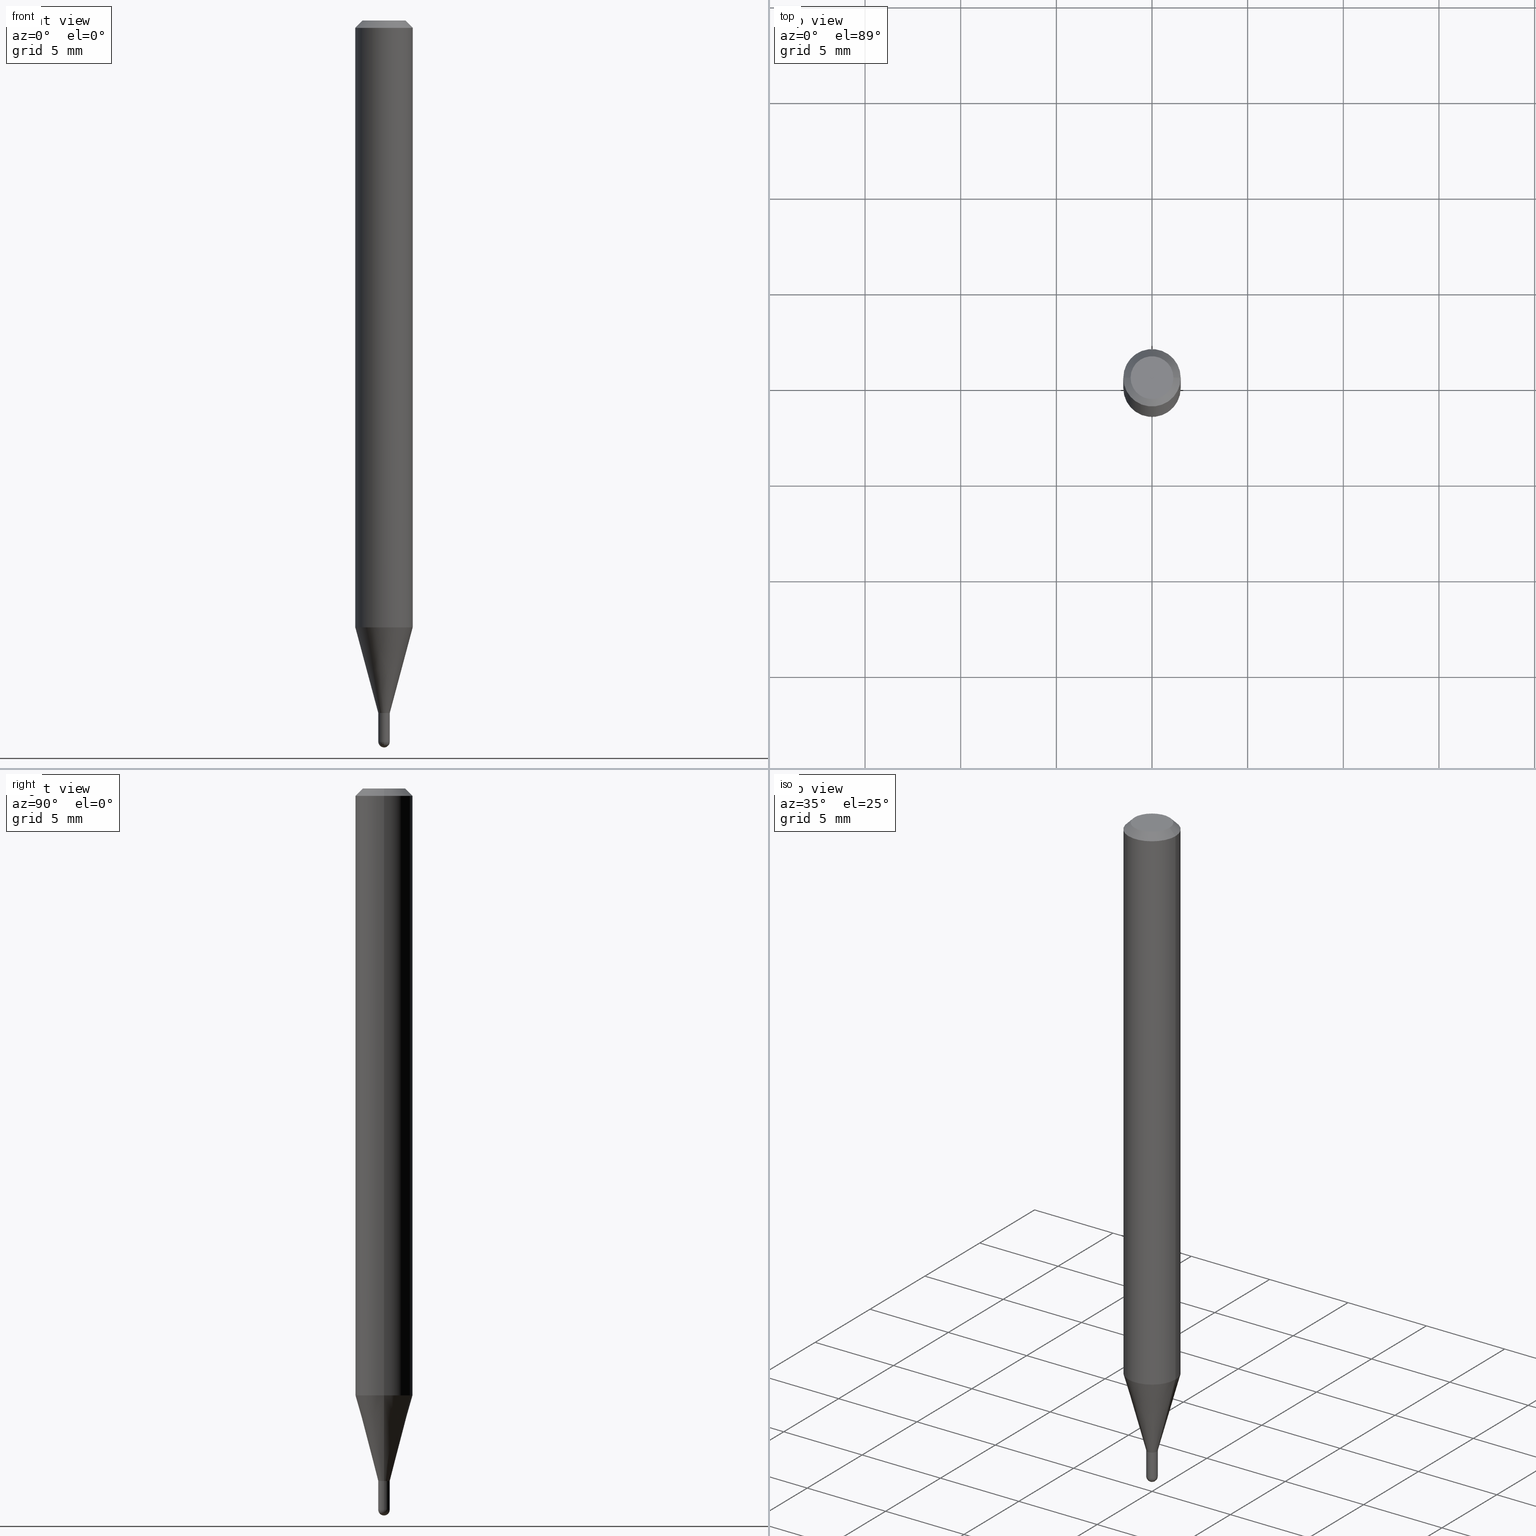
[diagram: canonical four-view strip — front | top / right | iso, engineering-drawing reading convention]
A machine part, canonical four-view strip (front | top / right | iso — engineering-drawing reading convention). The complete STEP part file that produces these views, byte-faithful:
ISO-10303-21;
HEADER;
FILE_DESCRIPTION (( 'STEP AP203' ),
    '1' );
FILE_NAME ('05047.STEP',
    '2024-03-08T21:12:23',
    ( '' ),
    ( '' ),
    'SwSTEP 2.0',
    'SolidWorks 2023',
    '' );
FILE_SCHEMA (( 'CONFIG_CONTROL_DESIGN' ));
ENDSEC;

DATA;
#1 = VERTEX_POINT ( 'NONE', #83 ) ;
#2 = AXIS2_PLACEMENT_3D ( 'NONE', #367, #399, #45 ) ;
#3 = LOCAL_TIME ( 16, 12, 23.00000000000000000, #427 ) ;
#4 = ADVANCED_FACE ( 'NONE', ( #243 ), #266, .T. ) ;
#5 = CALENDAR_DATE ( 2024, 8, 3 ) ;
#6 = ORIENTED_EDGE ( 'NONE', *, *, #426, .F. ) ;
#7 = DIRECTION ( 'NONE',  ( -0.2588190451025286776, 5.211531920934595218E-15, 0.9659258262890662028 ) ) ;
#8 = APPLICATION_CONTEXT ( 'configuration controlled 3d designs of mechanical parts and assemblies' ) ;
#9 = AXIS2_PLACEMENT_3D ( 'NONE', #49, #287, #52 ) ;
#10 = DESIGN_CONTEXT ( 'detailed design', #191, 'design' ) ;
#11 = CARTESIAN_POINT ( 'NONE',  ( 0.01130000000000000102, -5.054966682377104527E-15, -1.425199999999999578 ) ) ;
#12 = ORIENTED_EDGE ( 'NONE', *, *, #357, .F. ) ;
#13 = FACE_OUTER_BOUND ( 'NONE', #310, .T. ) ;
#14 = FACE_OUTER_BOUND ( 'NONE', #356, .T. ) ;
#15 = ADVANCED_FACE ( 'NONE', ( #198 ), #460, .T. ) ;
#16 = CARTESIAN_POINT ( 'NONE',  ( 0.05904999999999999832, -4.123439461173740327E-16, 2.879382386107500220E-30 ) ) ;
#17 = CIRCLE ( 'NONE', #306, 0.01180000000000000319 ) ;
#18 = ADVANCED_FACE ( 'NONE', ( #56 ), #401, .T. ) ;
#19 = AXIS2_PLACEMENT_3D ( 'NONE', #391, #417, #341 ) ;
#20 = FACE_OUTER_BOUND ( 'NONE', #203, .T. ) ;
#21 = ORIENTED_EDGE ( 'NONE', *, *, #347, .F. ) ;
#22 = SECURITY_CLASSIFICATION_LEVEL ( 'unclassified' ) ;
#23 = CARTESIAN_POINT ( 'NONE',  ( 3.668203209277724356E-31, -5.237222008264746748E-17, -0.01500000000000008098 ) ) ;
#24 = LINE ( 'NONE', #485, #286 ) ;
#25 = EDGE_LOOP ( 'NONE', ( #193, #189 ) ) ;
#26 = CIRCLE ( 'NONE', #316, 0.01179999999999965278 ) ;
#27 = CARTESIAN_POINT ( 'NONE',  ( 0.000000000000000000, 0.000000000000000000, 0.000000000000000000 ) ) ;
#28 = CARTESIAN_POINT ( 'NONE',  ( 0.01180000000000000319, -5.161631437278763522E-15, -1.484299999999999731 ) ) ;
#29 = PRODUCT_DEFINITION_FORMATION_WITH_SPECIFIED_SOURCE ( 'ANY', '', #329, .NOT_KNOWN. ) ;
#30 = ADVANCED_FACE ( 'NONE', ( #373 ), #447, .F. ) ;
#31 = CARTESIAN_POINT ( 'NONE',  ( 0.01180000000000000319, -8.239895959669796365E-17, 5.753888595439205651E-31 ) ) ;
#32 = APPLICATION_PROTOCOL_DEFINITION ( 'international standard', 'config_control_design', 1994, #8 ) ;
#33 = DIRECTION ( 'NONE',  ( -2.445468806185136597E-29, 3.491481338843145583E-15, 1.000000000000000000 ) ) ;
#34 = DIRECTION ( 'NONE',  ( -2.445468806185136597E-29, 3.491481338843145583E-15, 1.000000000000000000 ) ) ;
#35 = VERTEX_POINT ( 'NONE', #245 ) ;
#36 = DATE_AND_TIME ( #378, #3 ) ;
#37 = ADVANCED_FACE ( 'NONE', ( #166 ), #276, .T. ) ;
#38 = CALENDAR_DATE ( 2024, 8, 3 ) ;
#39 = CIRCLE ( 'NONE', #219, 0.01180000000000006738 ) ;
#40 = VECTOR ( 'NONE', #99, 39.37007874015748143 ) ;
#41 = ORIENTED_EDGE ( 'NONE', *, *, #124, .F. ) ;
#42 = DIRECTION ( 'NONE',  ( -2.445468806185136877E-29, 3.491481338843145188E-15, 1.000000000000000000 ) ) ;
#43 = VERTEX_POINT ( 'NONE', #335 ) ;
#44 = EDGE_LOOP ( 'NONE', ( #215, #510, #471, #259 ) ) ;
#45 = DIRECTION ( 'NONE',  ( 1.000000000000000000, -6.982962677686254878E-15, 0.000000000000000000 ) ) ;
#46 = VERTEX_POINT ( 'NONE', #250 ) ;
#47 = CARTESIAN_POINT ( 'NONE',  ( -0.05904999999999999832, 3.599717260347265590E-16, -0.01500000000000008098 ) ) ;
#48 = AXIS2_PLACEMENT_3D ( 'NONE', #410, #172, #138 ) ;
#49 = CARTESIAN_POINT ( 'NONE',  ( 3.629809349020597767E-29, -5.182405751244879809E-15, -1.484299999999999731 ) ) ;
#50 = LINE ( 'NONE', #96, #402 ) ;
#51 = CARTESIAN_POINT ( 'NONE',  ( 3.629809349020597767E-29, -5.182405751244879809E-15, -1.484299999999999731 ) ) ;
#52 = DIRECTION ( 'NONE',  ( 1.000000000000000000, -6.982962677686297476E-15, 0.000000000000000000 ) ) ;
#53 = ORIENTED_EDGE ( 'NONE', *, *, #70, .F. ) ;
#54 = CIRCLE ( 'NONE', #405, 0.01180000000000000319 ) ;
#55 = CARTESIAN_POINT ( 'NONE',  ( 0.01180000000000019922, -5.056712423046529186E-15, -1.424700000000000077 ) ) ;
#56 = FACE_OUTER_BOUND ( 'NONE', #57, .T. ) ;
#57 = EDGE_LOOP ( 'NONE', ( #480, #6, #314, #336 ) ) ;
#58 = LINE ( 'NONE', #31, #393 ) ;
#59 = CONICAL_SURFACE ( 'NONE', #279, 0.01179999999999965278, 0.2617993877991576235 ) ;
#60 = DIRECTION ( 'NONE',  ( -1.000000000000000000, 6.982962677686265922E-15, -4.883557194083112340E-29 ) ) ;
#61 =( NAMED_UNIT ( * ) PLANE_ANGLE_UNIT ( ) SI_UNIT ( $, .RADIAN. ) );
#62 = CARTESIAN_POINT ( 'NONE',  ( 0.000000000000000000, 0.000000000000000000, 0.000000000000000000 ) ) ;
#63 = EDGE_CURVE ( 'NONE', #35, #242, #168, .T. ) ;
#64 = APPROVAL_DATE_TIME ( #424, #420 ) ;
#65 = ADVANCED_FACE ( 'NONE', ( #14 ), #491, .T. ) ;
#66 = DIRECTION ( 'NONE',  ( -6.982962677686265133E-15, -1.000000000000000000, 0.000000000000000000 ) ) ;
#67 = PERSON_AND_ORGANIZATION ( #214, #507 ) ;
#68 = CARTESIAN_POINT ( 'NONE',  ( 3.054049638965451471E-29, -4.360373477420368492E-15, -1.248860599342374922 ) ) ;
#69 = EDGE_LOOP ( 'NONE', ( #235, #294 ) ) ;
#70 = EDGE_CURVE ( 'NONE', #114, #229, #24, .T. ) ;
#71 = CARTESIAN_POINT ( 'NONE',  ( 3.485282142575056435E-29, -4.976059204119250988E-15, -1.425199999999999800 ) ) ;
#72 = AXIS2_PLACEMENT_3D ( 'NONE', #439, #252, #86 ) ;
#73 = CIRCLE ( 'NONE', #220, 0.04404999999999999888 ) ;
#74 = ORIENTED_EDGE ( 'NONE', *, *, #270, .F. ) ;
#75 = EDGE_CURVE ( 'NONE', #150, #261, #17, .T. ) ;
#76 = ORIENTED_EDGE ( 'NONE', *, *, #436, .T. ) ;
#77 = ORIENTED_EDGE ( 'NONE', *, *, #63, .F. ) ;
#78 = AXIS2_PLACEMENT_3D ( 'NONE', #498, #500, #102 ) ;
#79 = EDGE_CURVE ( 'NONE', #194, #332, #371, .T. ) ;
#80 = ORIENTED_EDGE ( 'NONE', *, *, #132, .T. ) ;
#81 = ADVANCED_FACE ( 'NONE', ( #184 ), #428, .F. ) ;
#82 = CARTESIAN_POINT ( 'NONE',  ( 1.968655146103496235E-45, -2.810717800960375713E-31, -8.050215734195126909E-17 ) ) ;
#83 = CARTESIAN_POINT ( 'NONE',  ( -0.01130000000000000102, -4.893118647804247842E-15, -1.425199999999999578 ) ) ;
#84 = EDGE_CURVE ( 'NONE', #148, #229, #450, .T. ) ;
#85 = DIRECTION ( 'NONE',  ( -2.445468806185136597E-29, 3.491481338843145583E-15, 1.000000000000000000 ) ) ;
#86 = DIRECTION ( 'NONE',  ( 1.000000000000000000, -6.982962677686266711E-15, 4.876176775795935232E-29 ) ) ;
#87 = CLOSED_SHELL ( 'NONE', ( #509, #65, #81, #434, #300 ) ) ;
#88 = AXIS2_PLACEMENT_3D ( 'NONE', #27, #34, #299 ) ;
#89 =( GEOMETRIC_REPRESENTATION_CONTEXT ( 3 ) GLOBAL_UNCERTAINTY_ASSIGNED_CONTEXT ( ( #241 ) ) GLOBAL_UNIT_ASSIGNED_CONTEXT ( ( #499, #61, #385 ) ) REPRESENTATION_CONTEXT ( 'NONE', 'WORKASPACE' ) );
#90 = DATE_AND_TIME ( #127, #197 ) ;
#91 = LINE ( 'NONE', #338, #155 ) ;
#92 = DIRECTION ( 'NONE',  ( -2.445468806185136597E-29, 3.491481338843145583E-15, 1.000000000000000000 ) ) ;
#93 = DIRECTION ( 'NONE',  ( 1.000000000000000000, -6.982962677686265922E-15, 4.876176775795935793E-29 ) ) ;
#94 = PRODUCT_DEFINITION ( 'UNKNOWN', '', #29, #10 ) ;
#95 = PERSON_AND_ORGANIZATION ( #214, #507 ) ;
#96 = CARTESIAN_POINT ( 'NONE',  ( 0.01179999999999992687, -8.239895959669743364E-17, 5.753888595439167991E-31 ) ) ;
#97 = VERTEX_POINT ( 'NONE', #311 ) ;
#98 = AXIS2_PLACEMENT_3D ( 'NONE', #412, #369, #481 ) ;
#99 = DIRECTION ( 'NONE',  ( -2.445468806185136877E-29, 3.491481338843145188E-15, 1.000000000000000000 ) ) ;
#100 = EDGE_LOOP ( 'NONE', ( #118, #418, #77, #429, #415 ) ) ;
#101 = PERSON_AND_ORGANIZATION ( #214, #507 ) ;
#102 = DIRECTION ( 'NONE',  ( -1.000000000000000000, 6.982962677686265922E-15, -4.876176775795935793E-29 ) ) ;
#103 = EDGE_CURVE ( 'NONE', #353, #362, #154, .T. ) ;
#104 = FACE_OUTER_BOUND ( 'NONE', #158, .T. ) ;
#105 = CIRCLE ( 'NONE', #239, 0.01180000000000000146 ) ;
#106 = APPROVAL_ROLE ( '' ) ;
#107 = DIRECTION ( 'NONE',  ( 1.000000000000000000, -6.982962677686266711E-15, 4.876176775795936353E-29 ) ) ;
#108 = PERSON_AND_ORGANIZATION_ROLE ( 'creator' ) ;
#109 = CARTESIAN_POINT ( 'NONE',  ( 3.629809349020597767E-29, -5.182405751244879809E-15, -1.484299999999999731 ) ) ;
#110 = ORIENTED_EDGE ( 'NONE', *, *, #200, .T. ) ;
#111 = ADVANCED_FACE ( 'NONE', ( #113 ), #256, .T. ) ;
#112 = APPROVAL_STATUS ( 'not_yet_approved' ) ;
#113 = FACE_OUTER_BOUND ( 'NONE', #225, .T. ) ;
#114 = VERTEX_POINT ( 'NONE', #467 ) ;
#115 = DIRECTION ( 'NONE',  ( -2.445468806185136597E-29, 3.491481338843145583E-15, 1.000000000000000000 ) ) ;
#116 = DIRECTION ( 'NONE',  ( -2.445468806185136597E-29, 3.491481338843145583E-15, 1.000000000000000000 ) ) ;
#117 = LOCAL_TIME ( 16, 12, 23.00000000000000000, #268 ) ;
#118 = ORIENTED_EDGE ( 'NONE', *, *, #160, .T. ) ;
#119 = PRODUCT_RELATED_PRODUCT_CATEGORY ( 'detail', '', ( #329 ) ) ;
#120 = ORIENTED_EDGE ( 'NONE', *, *, #383, .T. ) ;
#121 = LOCAL_TIME ( 16, 12, 23.00000000000000000, #199 ) ;
#122 = DIMENSIONAL_EXPONENTS ( 1.000000000000000000, 0.000000000000000000, 0.000000000000000000, 0.000000000000000000, 0.000000000000000000, 0.000000000000000000, 0.000000000000000000 ) ;
#123 = ORIENTED_EDGE ( 'NONE', *, *, #464, .T. ) ;
#124 = EDGE_CURVE ( 'NONE', #1, #362, #269, .T. ) ;
#125 = CARTESIAN_POINT ( 'NONE',  ( -0.01179999999999992687, 8.384404281969130229E-17, -5.804343406500752232E-31 ) ) ;
#126 = DIRECTION ( 'NONE',  ( 2.445468806185136597E-29, -3.491481338843145583E-15, -1.000000000000000000 ) ) ;
#127 = CALENDAR_DATE ( 2024, 8, 3 ) ;
#128 = CYLINDRICAL_SURFACE ( 'NONE', #247, 0.05904999999999999832 ) ;
#129 = DIRECTION ( 'NONE',  ( 1.000000000000000000, -6.982962677686265133E-15, 4.883557194083112340E-29 ) ) ;
#130 = AXIS2_PLACEMENT_3D ( 'NONE', #413, #126, #285 ) ;
#131 = LINE ( 'NONE', #11, #461 ) ;
#132 = EDGE_CURVE ( 'NONE', #362, #353, #315, .T. ) ;
#133 = CARTESIAN_POINT ( 'NONE',  ( 3.485282142575056435E-29, -4.976059204119250988E-15, -1.425199999999999800 ) ) ;
#134 = CARTESIAN_POINT ( 'NONE',  ( 3.628800252799366100E-29, -5.183850834467873739E-15, -1.484299999999999731 ) ) ;
#135 = VERTEX_POINT ( 'NONE', #234 ) ;
#136 = DATE_TIME_ROLE ( 'classification_date' ) ;
#137 = CYLINDRICAL_SURFACE ( 'NONE', #317, 0.01180000000000000319 ) ;
#138 = DIRECTION ( 'NONE',  ( 1.000000000000000000, -6.982962677686258033E-15, 0.000000000000000000 ) ) ;
#139 = EDGE_LOOP ( 'NONE', ( #435, #440 ) ) ;
#140 = AXIS2_PLACEMENT_3D ( 'NONE', #265, #504, #216 ) ;
#141 = PERSON_AND_ORGANIZATION ( #214, #507 ) ;
#142 = CARTESIAN_POINT ( 'NONE',  ( -0.01130000000000000102, -4.895767874978359043E-15, -1.425199999999999578 ) ) ;
#143 = CARTESIAN_POINT ( 'NONE',  ( 0.000000000000000000, 0.000000000000000000, 0.000000000000000000 ) ) ;
#144 = DIRECTION ( 'NONE',  ( 7.105427357600999492E-15, 1.000000000000000000, 0.000000000000000000 ) ) ;
#145 = ADVANCED_FACE ( 'NONE', ( #104 ), #396, .T. ) ;
#146 = DIRECTION ( 'NONE',  ( 1.000000000000000000, -6.982962677686297476E-15, 0.000000000000000000 ) ) ;
#147 = DIRECTION ( 'NONE',  ( -2.445468806185136597E-29, 3.491481338843145583E-15, 1.000000000000000000 ) ) ;
#148 = VERTEX_POINT ( 'NONE', #381 ) ;
#149 = DIRECTION ( 'NONE',  ( 1.000000000000000000, -6.982962677686264344E-15, 0.000000000000000000 ) ) ;
#150 = VERTEX_POINT ( 'NONE', #28 ) ;
#151 = CARTESIAN_POINT ( 'NONE',  ( -0.05904999999999999832, 4.195754854663391478E-16, -2.904631170795521892E-30 ) ) ;
#152 = VERTEX_POINT ( 'NONE', #344 ) ;
#153 = EDGE_CURVE ( 'NONE', #152, #261, #209, .T. ) ;
#154 = CIRCLE ( 'NONE', #411, 0.01180000000000019922 ) ;
#155 = VECTOR ( 'NONE', #171, 39.37007874015748143 ) ;
#156 = ORIENTED_EDGE ( 'NONE', *, *, #195, .T. ) ;
#157 = ADVANCED_FACE ( 'NONE', ( #302 ), #59, .T. ) ;
#158 = EDGE_LOOP ( 'NONE', ( #495, #492, #508, #12 ) ) ;
#159 = EDGE_CURVE ( 'NONE', #229, #148, #486, .T. ) ;
#160 = EDGE_CURVE ( 'NONE', #261, #389, #54, .T. ) ;
#161 = ORIENTED_EDGE ( 'NONE', *, *, #361, .T. ) ;
#162 = AXIS2_PLACEMENT_3D ( 'NONE', #408, #406, #205 ) ;
#163 = DIRECTION ( 'NONE',  ( -2.445468806185136877E-29, 3.491481338843145188E-15, 1.000000000000000000 ) ) ;
#164 = ORIENTED_EDGE ( 'NONE', *, *, #124, .T. ) ;
#165 = CARTESIAN_POINT ( 'NONE',  ( 1.968655146103496235E-45, -2.810717800960375713E-31, -8.050215734195126909E-17 ) ) ;
#166 = FACE_OUTER_BOUND ( 'NONE', #44, .T. ) ;
#167 = CARTESIAN_POINT ( 'NONE',  ( 3.485282142575056435E-29, -4.976059204119250988E-15, -1.425199999999999800 ) ) ;
#168 = CIRCLE ( 'NONE', #382, 0.01180000000000000146 ) ;
#169 = CIRCLE ( 'NONE', #98, 0.01180000000000000319 ) ;
#170 = EDGE_CURVE ( 'NONE', #46, #148, #474, .T. ) ;
#171 = DIRECTION ( 'NONE',  ( -2.445468806185136877E-29, 3.491481338843145188E-15, 1.000000000000000000 ) ) ;
#172 = DIRECTION ( 'NONE',  ( -2.445468806185136597E-29, 3.491481338843145583E-15, 1.000000000000000000 ) ) ;
#173 = ORIENTED_EDGE ( 'NONE', *, *, #132, .F. ) ;
#174 = PERSON_AND_ORGANIZATION ( #214, #507 ) ;
#175 = DIRECTION ( 'NONE',  ( -2.445468806185136877E-29, 3.491481338843145188E-15, 1.000000000000000000 ) ) ;
#176 = DIRECTION ( 'NONE',  ( 0.2588190451025286776, 1.565188264969564184E-15, 0.9659258262890662028 ) ) ;
#177 = ORIENTED_EDGE ( 'NONE', *, *, #79, .F. ) ;
#178 = CC_DESIGN_PERSON_AND_ORGANIZATION_ASSIGNMENT ( #95, #254, ( #29 ) ) ;
#179 = APPROVAL_PERSON_ORGANIZATION ( #318, #275, #359 ) ;
#180 =( LENGTH_UNIT ( ) NAMED_UNIT ( * ) SI_UNIT ( $, .METRE. ) );
#181 = DIRECTION ( 'NONE',  ( -2.445468806185136597E-29, 3.491481338843145583E-15, 1.000000000000000000 ) ) ;
#182 = DIRECTION ( 'NONE',  ( 1.000000000000000000, -6.982962677686258033E-15, 0.000000000000000000 ) ) ;
#183 = CARTESIAN_POINT ( 'NONE',  ( 3.485282142575056435E-29, -4.976059204119250988E-15, -1.425199999999999800 ) ) ;
#184 = FACE_OUTER_BOUND ( 'NONE', #69, .T. ) ;
#185 = CLOSED_SHELL ( 'NONE', ( #30, #4, #111, #363, #157, #37, #145, #18, #453, #477, #15, #512 ) ) ;
#186 = CIRCLE ( 'NONE', #19, 0.01130000000000000102 ) ;
#187 = DATE_AND_TIME ( #38, #423 ) ;
#188 = DIRECTION ( 'NONE',  ( 1.000000000000000000, -6.982962677686265133E-15, 0.000000000000000000 ) ) ;
#189 = ORIENTED_EDGE ( 'NONE', *, *, #192, .T. ) ;
#190 = DIRECTION ( 'NONE',  ( 1.000000000000000000, -6.982962677686254878E-15, 0.000000000000000000 ) ) ;
#191 = APPLICATION_CONTEXT ( 'configuration controlled 3d designs of mechanical parts and assemblies' ) ;
#192 = EDGE_CURVE ( 'NONE', #43, #97, #472, .T. ) ;
#193 = ORIENTED_EDGE ( 'NONE', *, *, #426, .T. ) ;
#194 = VERTEX_POINT ( 'NONE', #263 ) ;
#195 = EDGE_CURVE ( 'NONE', #152, #135, #39, .T. ) ;
#196 = AXIS2_PLACEMENT_3D ( 'NONE', #305, #222, #144 ) ;
#197 = LOCAL_TIME ( 16, 12, 23.00000000000000000, #201 ) ;
#198 = FACE_OUTER_BOUND ( 'NONE', #454, .T. ) ;
#199 = COORDINATED_UNIVERSAL_TIME_OFFSET ( 5, 0, .BEHIND. ) ;
#200 = EDGE_CURVE ( 'NONE', #150, #35, #58, .T. ) ;
#201 = COORDINATED_UNIVERSAL_TIME_OFFSET ( 5, 0, .BEHIND. ) ;
#202 = DIRECTION ( 'NONE',  ( 1.000000000000000000, -6.982962677686266711E-15, 0.000000000000000000 ) ) ;
#203 = EDGE_LOOP ( 'NONE', ( #21, #76, #161, #110, #397 ) ) ;
#204 = CIRCLE ( 'NONE', #9, 0.01180000000000000319 ) ;
#205 = DIRECTION ( 'NONE',  ( -6.982962677686265133E-15, -1.000000000000000000, 0.000000000000000000 ) ) ;
#206 = CARTESIAN_POINT ( 'NONE',  ( 3.485282142575056435E-29, -4.976059204119250988E-15, -1.425199999999999800 ) ) ;
#207 = EDGE_CURVE ( 'NONE', #148, #332, #395, .T. ) ;
#208 = CARTESIAN_POINT ( 'NONE',  ( 8.384404281972835410E-17, 0.01179999999999485107, -1.484299999999999731 ) ) ;
#209 = CIRCLE ( 'NONE', #196, 0.01180000000000006738 ) ;
#210 = ORIENTED_EDGE ( 'NONE', *, *, #361, .F. ) ;
#211 = PERSON_AND_ORGANIZATION_ROLE ( 'design_supplier' ) ;
#212 = FACE_OUTER_BOUND ( 'NONE', #25, .T. ) ;
#213 = DIRECTION ( 'NONE',  ( -6.982962677686265133E-15, -1.000000000000000000, 0.000000000000000000 ) ) ;
#214 = PERSON ( 'UNSPECIFIED', 'UNSPECIFIED', 'UNSPECIFIED', ('UNSPECIFIED'), ('UNSPECIFIED'), ('UNSPECIFIED') ) ;
#215 = ORIENTED_EDGE ( 'NONE', *, *, #170, .F. ) ;
#216 = DIRECTION ( 'NONE',  ( 1.000000000000000000, -6.982962677686266711E-15, 4.876176775795935232E-29 ) ) ;
#217 = PLANE ( 'NONE',  #307 ) ;
#218 = CARTESIAN_POINT ( 'NONE',  ( 3.484059408171963633E-29, -4.974313463449829484E-15, -1.424700000000000077 ) ) ;
#219 = AXIS2_PLACEMENT_3D ( 'NONE', #267, #60, #66 ) ;
#220 = AXIS2_PLACEMENT_3D ( 'NONE', #165, #244, #327 ) ;
#221 = DIRECTION ( 'NONE',  ( 1.000000000000000000, 0.000000000000000000, 0.000000000000000000 ) ) ;
#222 = DIRECTION ( 'NONE',  ( 1.000000000000000000, -7.105427357601001070E-15, 4.926315508542082329E-29 ) ) ;
#223 = PERSON_AND_ORGANIZATION ( #214, #507 ) ;
#224 = DIRECTION ( 'NONE',  ( 1.000000000000000000, -6.982962677686266711E-15, 0.000000000000000000 ) ) ;
#225 = EDGE_LOOP ( 'NONE', ( #272, #277, #377, #340 ) ) ;
#226 = PRODUCT_DEFINITION_SHAPE ( 'NONE', 'NONE',  #94 ) ;
#227 = EDGE_CURVE ( 'NONE', #114, #46, #26, .T. ) ;
#228 = CARTESIAN_POINT ( 'NONE',  ( 3.668203209277724356E-31, -5.237222008264746748E-17, -0.01500000000000008098 ) ) ;
#229 = VERTEX_POINT ( 'NONE', #313 ) ;
#230 = VECTOR ( 'NONE', #7, 39.37007874015748143 ) ;
#231 = CARTESIAN_POINT ( 'NONE',  ( -0.01180000000000000146, -4.995388434862373344E-15, -1.425199999999999800 ) ) ;
#232 = APPROVAL_PERSON_ORGANIZATION ( #101, #303, #337 ) ;
#233 = APPROVAL_DATE_TIME ( #431, #275 ) ;
#234 = CARTESIAN_POINT ( 'NONE',  ( -8.239895959666188559E-17, -0.01180000000000521951, -1.484299999999999731 ) ) ;
#235 = ORIENTED_EDGE ( 'NONE', *, *, #63, .T. ) ;
#236 = EDGE_CURVE ( 'NONE', #1, #283, #488, .T. ) ;
#237 = ORIENTED_EDGE ( 'NONE', *, *, #365, .T. ) ;
#238 = AXIS2_PLACEMENT_3D ( 'NONE', #134, #129, #213 ) ;
#239 = AXIS2_PLACEMENT_3D ( 'NONE', #133, #489, #443 ) ;
#240 = EDGE_LOOP ( 'NONE', ( #392, #164, #281, #312 ) ) ;
#241 = UNCERTAINTY_MEASURE_WITH_UNIT (LENGTH_MEASURE( 1.000000000000000082E-05 ), #499, 'distance_accuracy_value', 'NONE');
#242 = VERTEX_POINT ( 'NONE', #231 ) ;
#243 = FACE_OUTER_BOUND ( 'NONE', #240, .T. ) ;
#244 = DIRECTION ( 'NONE',  ( -2.445468806185136597E-29, 3.491481338843145583E-15, 1.000000000000000000 ) ) ;
#245 = CARTESIAN_POINT ( 'NONE',  ( 0.01180000000000000146, -5.058458163715949112E-15, -1.425199999999999800 ) ) ;
#246 = AXIS2_PLACEMENT_3D ( 'NONE', #82, #116, #398 ) ;
#247 = AXIS2_PLACEMENT_3D ( 'NONE', #451, #334, #490 ) ;
#248 = ORIENTED_EDGE ( 'NONE', *, *, #236, .T. ) ;
#249 = CARTESIAN_POINT ( 'NONE',  ( 3.075995059520799729E-16, 0.04404999999999999888, -1.940508316470162065E-16 ) ) ;
#250 = CARTESIAN_POINT ( 'NONE',  ( -0.01179999999999965278, -4.416506576626794755E-15, -1.425199999999999800 ) ) ;
#251 = CARTESIAN_POINT ( 'NONE',  ( -0.05904999999999999832, -1.786797363285168490E-15, -0.01500000000000008098 ) ) ;
#252 = DIRECTION ( 'NONE',  ( -2.445468806185136597E-29, 3.491481338843145583E-15, 1.000000000000000000 ) ) ;
#253 = ORIENTED_EDGE ( 'NONE', *, *, #75, .F. ) ;
#254 = PERSON_AND_ORGANIZATION_ROLE ( 'creator' ) ;
#255 = DIRECTION ( 'NONE',  ( -2.445468806185136597E-29, 3.491481338843145583E-15, 1.000000000000000000 ) ) ;
#256 = CONICAL_SURFACE ( 'NONE', #441, 0.05904999999999999832, 0.7853981633974483900 ) ;
#257 = VECTOR ( 'NONE', #163, 39.37007874015748143 ) ;
#258 = EDGE_CURVE ( 'NONE', #97, #332, #493, .T. ) ;
#259 = ORIENTED_EDGE ( 'NONE', *, *, #84, .F. ) ;
#260 = DATE_TIME_ROLE ( 'creation_date' ) ;
#261 = VERTEX_POINT ( 'NONE', #208 ) ;
#262 = SHAPE_DEFINITION_REPRESENTATION ( #226, #476 ) ;
#263 = CARTESIAN_POINT ( 'NONE',  ( 0.05904999999999999832, -4.647161662000215063E-16, -0.01500000000000008098 ) ) ;
#264 = DIRECTION ( 'NONE',  ( 2.445468806185136597E-29, -3.491481338843145583E-15, -1.000000000000000000 ) ) ;
#265 = CARTESIAN_POINT ( 'NONE',  ( 0.000000000000000000, 0.000000000000000000, 0.000000000000000000 ) ) ;
#266 = CONICAL_SURFACE ( 'NONE', #2, 0.01130000000000000102, 0.7853981633980202659 ) ;
#267 = CARTESIAN_POINT ( 'NONE',  ( 3.628800252799366100E-29, -5.183850834467873739E-15, -1.484299999999999731 ) ) ;
#268 = COORDINATED_UNIVERSAL_TIME_OFFSET ( 5, 0, .BEHIND. ) ;
#269 = LINE ( 'NONE', #142, #342 ) ;
#270 = EDGE_CURVE ( 'NONE', #229, #194, #370, .T. ) ;
#271 = COORDINATED_UNIVERSAL_TIME_OFFSET ( 5, 0, .BEHIND. ) ;
#272 = ORIENTED_EDGE ( 'NONE', *, *, #192, .F. ) ;
#273 = DIRECTION ( 'NONE',  ( 1.000000000000000000, -6.982962677686264344E-15, 0.000000000000000000 ) ) ;
#274 = ORIENTED_EDGE ( 'NONE', *, *, #365, .F. ) ;
#275 = APPROVAL ( #112, 'UNSPECIFIED' ) ;
#276 = CONICAL_SURFACE ( 'NONE', #48, 0.01179999999999965278, 0.2617993877991576235 ) ;
#277 = ORIENTED_EDGE ( 'NONE', *, *, #503, .T. ) ;
#278 = CARTESIAN_POINT ( 'NONE',  ( -0.01179999999999965278, -4.892215161299561300E-15, -1.425199999999999800 ) ) ;
#279 = AXIS2_PLACEMENT_3D ( 'NONE', #505, #33, #182 ) ;
#280 = CC_DESIGN_APPROVAL ( #275, ( #29 ) ) ;
#281 = ORIENTED_EDGE ( 'NONE', *, *, #103, .F. ) ;
#282 = MANIFOLD_SOLID_BREP ( 'Body-Move/Copy2[2]', #185 ) ;
#283 = VERTEX_POINT ( 'NONE', #404 ) ;
#284 = CARTESIAN_POINT ( 'NONE',  ( -0.01180000000000000319, -4.995388434862373344E-15, -1.484299999999999731 ) ) ;
#285 = DIRECTION ( 'NONE',  ( -1.000000000000000000, 6.982962677686266711E-15, 0.000000000000000000 ) ) ;
#286 = VECTOR ( 'NONE', #176, 39.37007874015748143 ) ;
#287 = DIRECTION ( 'NONE',  ( -2.445468806185136597E-29, 3.491481338843145583E-15, 1.000000000000000000 ) ) ;
#288 = DIRECTION ( 'NONE',  ( -2.445468806185136597E-29, 3.491481338843145583E-15, 1.000000000000000000 ) ) ;
#289 = AXIS2_PLACEMENT_3D ( 'NONE', #143, #421, #221 ) ;
#290 = SPHERICAL_SURFACE ( 'NONE', #162, 0.01180000000000006738 ) ;
#291 = EDGE_CURVE ( 'NONE', #46, #114, #394, .T. ) ;
#292 = PLANE ( 'NONE',  #331 ) ;
#293 = CC_DESIGN_DATE_AND_TIME_ASSIGNMENT ( #187, #260, ( #94 ) ) ;
#294 = ORIENTED_EDGE ( 'NONE', *, *, #416, .T. ) ;
#295 = CARTESIAN_POINT ( 'NONE',  ( -0.01180000000000019922, -4.890469420630136641E-15, -1.424700000000000077 ) ) ;
#296 = VECTOR ( 'NONE', #42, 39.37007874015748143 ) ;
#297 = CC_DESIGN_APPROVAL ( #303, ( #322 ) ) ;
#298 = ORIENTED_EDGE ( 'NONE', *, *, #159, .F. ) ;
#299 = DIRECTION ( 'NONE',  ( 1.000000000000000000, -6.982962677686265922E-15, 4.876176775795935793E-29 ) ) ;
#300 = ADVANCED_FACE ( 'NONE', ( #20 ), #137, .T. ) ;
#301 = DIRECTION ( 'NONE',  ( 1.000000000000000000, -6.982962677686265922E-15, 4.876176775795935793E-29 ) ) ;
#302 = FACE_OUTER_BOUND ( 'NONE', #465, .T. ) ;
#303 = APPROVAL ( #455, 'UNSPECIFIED' ) ;
#304 = PERSON_AND_ORGANIZATION_ROLE ( 'design_owner' ) ;
#305 = CARTESIAN_POINT ( 'NONE',  ( 3.628800252799366100E-29, -5.183850834467873739E-15, -1.484299999999999731 ) ) ;
#306 = AXIS2_PLACEMENT_3D ( 'NONE', #51, #288, #444 ) ;
#307 = AXIS2_PLACEMENT_3D ( 'NONE', #183, #345, #301 ) ;
#308 = CALENDAR_DATE ( 2024, 8, 3 ) ;
#309 = DIRECTION ( 'NONE',  ( -0.7071067811869518049, 7.493145998871813553E-15, 0.7071067811861430075 ) ) ;
#310 = EDGE_LOOP ( 'NONE', ( #483, #320, #177, #74 ) ) ;
#311 = CARTESIAN_POINT ( 'NONE',  ( -0.04404999999999999888, 3.337856159934031674E-16, -8.050215734195352474E-17 ) ) ;
#312 = ORIENTED_EDGE ( 'NONE', *, *, #383, .F. ) ;
#313 = CARTESIAN_POINT ( 'NONE',  ( 0.05904999999999999138, -4.772717423537742623E-15, -1.248860599342374922 ) ) ;
#314 = ORIENTED_EDGE ( 'NONE', *, *, #258, .T. ) ;
#315 = CIRCLE ( 'NONE', #422, 0.01180000000000019922 ) ;
#316 = AXIS2_PLACEMENT_3D ( 'NONE', #71, #115, #511 ) ;
#317 = AXIS2_PLACEMENT_3D ( 'NONE', #330, #85, #93 ) ;
#318 = PERSON_AND_ORGANIZATION ( #214, #507 ) ;
#319 = ORIENTED_EDGE ( 'NONE', *, *, #436, .F. ) ;
#320 = ORIENTED_EDGE ( 'NONE', *, *, #207, .T. ) ;
#321 = AXIS2_PLACEMENT_3D ( 'NONE', #62, #425, #107 ) ;
#322 = SECURITY_CLASSIFICATION ( '', '', #22 ) ;
#323 = EDGE_LOOP ( 'NONE', ( #274, #350, #123, #449 ) ) ;
#324 = DIRECTION ( 'NONE',  ( -2.445468806185136597E-29, 3.491481338843145583E-15, 1.000000000000000000 ) ) ;
#325 = ORIENTED_EDGE ( 'NONE', *, *, #160, .F. ) ;
#326 = CC_DESIGN_PERSON_AND_ORGANIZATION_ASSIGNMENT ( #368, #211, ( #29 ) ) ;
#327 = DIRECTION ( 'NONE',  ( 1.000000000000000000, -6.982962677686265922E-15, 4.888540261209747396E-29 ) ) ;
#328 = DIRECTION ( 'NONE',  ( 1.000000000000000000, -6.982962677686254878E-15, 0.000000000000000000 ) ) ;
#329 = PRODUCT ( '05047', '05047', '', ( #379 ) ) ;
#330 = CARTESIAN_POINT ( 'NONE',  ( 0.000000000000000000, 0.000000000000000000, 0.000000000000000000 ) ) ;
#331 = AXIS2_PLACEMENT_3D ( 'NONE', #249, #375, #446 ) ;
#332 = VERTEX_POINT ( 'NONE', #251 ) ;
#333 = CC_DESIGN_PERSON_AND_ORGANIZATION_ASSIGNMENT ( #223, #108, ( #94 ) ) ;
#334 = DIRECTION ( 'NONE',  ( -2.445468806185136597E-29, 3.491481338843145583E-15, 1.000000000000000000 ) ) ;
#335 = CARTESIAN_POINT ( 'NONE',  ( 0.04404999999999999888, -3.798447818264463530E-16, -8.050215734194887786E-17 ) ) ;
#336 = ORIENTED_EDGE ( 'NONE', *, *, #357, .T. ) ;
#337 = APPROVAL_ROLE ( '' ) ;
#338 = CARTESIAN_POINT ( 'NONE',  ( -0.01180000000000000319, 8.384404281969184463E-17, -5.804343406500789892E-31 ) ) ;
#339 = CARTESIAN_POINT ( 'NONE',  ( 3.668203209277724356E-31, -5.237222008264746748E-17, -0.01500000000000008098 ) ) ;
#340 = ORIENTED_EDGE ( 'NONE', *, *, #258, .F. ) ;
#341 = DIRECTION ( 'NONE',  ( 1.000000000000000000, -6.982962677686254878E-15, 0.000000000000000000 ) ) ;
#342 = VECTOR ( 'NONE', #309, 39.37007874015748854 ) ;
#343 = LENGTH_MEASURE_WITH_UNIT ( LENGTH_MEASURE( 0.02539999999999999897 ), #180 );
#344 = CARTESIAN_POINT ( 'NONE',  ( 3.657152236601735168E-29, -5.225772855877719767E-15, -1.496099999999999985 ) ) ;
#345 = DIRECTION ( 'NONE',  ( -2.438088387897960049E-29, 3.491481338843145188E-15, 1.000000000000000000 ) ) ;
#346 = CARTESIAN_POINT ( 'NONE',  ( 3.054049638965451471E-29, -4.360373477420368492E-15, -1.248860599342374922 ) ) ;
#347 = EDGE_CURVE ( 'NONE', #389, #242, #91, .T. ) ;
#348 = APPLICATION_PROTOCOL_DEFINITION ( 'international standard', 'config_control_design', 1994, #191 ) ;
#349 = DIRECTION ( 'NONE',  ( -1.000000000000000000, 6.982962677686266711E-15, 0.000000000000000000 ) ) ;
#350 = ORIENTED_EDGE ( 'NONE', *, *, #227, .F. ) ;
#351 = AXIS2_PLACEMENT_3D ( 'NONE', #339, #92, #224 ) ;
#352 = CC_DESIGN_APPROVAL ( #420, ( #94 ) ) ;
#353 = VERTEX_POINT ( 'NONE', #55 ) ;
#354 = CARTESIAN_POINT ( 'NONE',  ( 3.485282142575055874E-29, -4.976059204119250199E-15, -1.425199999999999578 ) ) ;
#355 = ORIENTED_EDGE ( 'NONE', *, *, #153, .F. ) ;
#356 = EDGE_LOOP ( 'NONE', ( #479, #473, #253, #210 ) ) ;
#357 = EDGE_CURVE ( 'NONE', #332, #194, #437, .T. ) ;
#358 = AXIS2_PLACEMENT_3D ( 'NONE', #354, #430, #190 ) ;
#359 = APPROVAL_ROLE ( '' ) ;
#360 = CARTESIAN_POINT ( 'NONE',  ( 3.485282142575055874E-29, -4.976059204119250199E-15, -1.425199999999999578 ) ) ;
#361 = EDGE_CURVE ( 'NONE', #135, #150, #169, .T. ) ;
#362 = VERTEX_POINT ( 'NONE', #295 ) ;
#363 = ADVANCED_FACE ( 'NONE', ( #13 ), #128, .T. ) ;
#364 = CC_DESIGN_SECURITY_CLASSIFICATION ( #322, ( #29 ) ) ;
#365 = EDGE_CURVE ( 'NONE', #46, #362, #445, .T. ) ;
#366 = DIRECTION ( 'NONE',  ( 0.7071067811869518049, -2.468850131086492060E-15, 0.7071067811861430075 ) ) ;
#367 = CARTESIAN_POINT ( 'NONE',  ( 3.485282142575055874E-29, -4.976059204119250199E-15, -1.425199999999999578 ) ) ;
#368 = PERSON_AND_ORGANIZATION ( #214, #507 ) ;
#369 = DIRECTION ( 'NONE',  ( -2.445468806185136597E-29, 3.491481338843145583E-15, 1.000000000000000000 ) ) ;
#370 = LINE ( 'NONE', #16, #257 ) ;
#371 = CIRCLE ( 'NONE', #351, 0.05904999999999999832 ) ;
#372 = DIRECTION ( 'NONE',  ( 1.000000000000000000, -6.982962677686258033E-15, 0.000000000000000000 ) ) ;
#373 = FACE_OUTER_BOUND ( 'NONE', #374, .T. ) ;
#374 = EDGE_LOOP ( 'NONE', ( #432, #237, #80, #482 ) ) ;
#375 = DIRECTION ( 'NONE',  ( 2.438088387897960049E-29, -3.491481338843145188E-15, -1.000000000000000000 ) ) ;
#376 = DIRECTION ( 'NONE',  ( -2.445468806185136597E-29, 3.491481338843145583E-15, 1.000000000000000000 ) ) ;
#377 = ORIENTED_EDGE ( 'NONE', *, *, #79, .T. ) ;
#378 = CALENDAR_DATE ( 2024, 8, 3 ) ;
#379 = MECHANICAL_CONTEXT ( 'NONE', #8, 'mechanical' ) ;
#380 = DIRECTION ( 'NONE',  ( 0.7071067811865475727, -7.319954787623256045E-15, -0.7071067811865474617 ) ) ;
#381 = CARTESIAN_POINT ( 'NONE',  ( -0.05904999999999999138, -3.940797991954028999E-15, -1.248860599342374922 ) ) ;
#382 = AXIS2_PLACEMENT_3D ( 'NONE', #206, #376, #407 ) ;
#383 = EDGE_CURVE ( 'NONE', #283, #353, #131, .T. ) ;
#384 = VECTOR ( 'NONE', #484, 39.37007874015748143 ) ;
#385 =( NAMED_UNIT ( * ) SI_UNIT ( $, .STERADIAN. ) SOLID_ANGLE_UNIT ( ) );
#386 = DIRECTION ( 'NONE',  ( -2.445468806185136597E-29, 3.491481338843145583E-15, 1.000000000000000000 ) ) ;
#387 = FACE_OUTER_BOUND ( 'NONE', #323, .T. ) ;
#388 = CARTESIAN_POINT ( 'NONE',  ( 3.484059408171963633E-29, -4.974313463449829484E-15, -1.424700000000000077 ) ) ;
#389 = VERTEX_POINT ( 'NONE', #284 ) ;
#390 = CC_DESIGN_PERSON_AND_ORGANIZATION_ASSIGNMENT ( #67, #304, ( #329 ) ) ;
#391 = CARTESIAN_POINT ( 'NONE',  ( 3.485282142575055874E-29, -4.976059204119250199E-15, -1.425199999999999578 ) ) ;
#392 = ORIENTED_EDGE ( 'NONE', *, *, #469, .T. ) ;
#393 = VECTOR ( 'NONE', #470, 39.37007874015748143 ) ;
#394 = CIRCLE ( 'NONE', #442, 0.01179999999999965278 ) ;
#395 = LINE ( 'NONE', #151, #296 ) ;
#396 = CYLINDRICAL_SURFACE ( 'NONE', #321, 0.05904999999999999832 ) ;
#397 = ORIENTED_EDGE ( 'NONE', *, *, #416, .F. ) ;
#398 = DIRECTION ( 'NONE',  ( 1.000000000000000000, -6.982962677686265922E-15, 4.888540261209747396E-29 ) ) ;
#399 = DIRECTION ( 'NONE',  ( -2.445468806185136597E-29, 3.491481338843145583E-15, 1.000000000000000000 ) ) ;
#400 = CC_DESIGN_DATE_AND_TIME_ASSIGNMENT ( #90, #136, ( #322 ) ) ;
#401 = CONICAL_SURFACE ( 'NONE', #130, 0.05904999999999999832, 0.7853981633974483900 ) ;
#402 = VECTOR ( 'NONE', #175, 39.37007874015748143 ) ;
#403 = EDGE_LOOP ( 'NONE', ( #355, #156, #319, #325 ) ) ;
#404 = CARTESIAN_POINT ( 'NONE',  ( 0.01130000000000000102, -5.054966682377104527E-15, -1.425199999999999578 ) ) ;
#405 = AXIS2_PLACEMENT_3D ( 'NONE', #109, #502, #146 ) ;
#406 = DIRECTION ( 'NONE',  ( 1.000000000000000000, -6.982962677686265133E-15, 4.883557194083112340E-29 ) ) ;
#407 = DIRECTION ( 'NONE',  ( 1.000000000000000000, -6.982962677686298265E-15, 0.000000000000000000 ) ) ;
#408 = CARTESIAN_POINT ( 'NONE',  ( 3.628800252799366100E-29, -5.183850834467873739E-15, -1.484299999999999731 ) ) ;
#409 = FACE_OUTER_BOUND ( 'NONE', #403, .T. ) ;
#410 = CARTESIAN_POINT ( 'NONE',  ( 3.485282142575056435E-29, -4.976059204119250988E-15, -1.425199999999999800 ) ) ;
#411 = AXIS2_PLACEMENT_3D ( 'NONE', #388, #147, #149 ) ;
#412 = CARTESIAN_POINT ( 'NONE',  ( 3.629809349020597767E-29, -5.182405751244879809E-15, -1.484299999999999731 ) ) ;
#413 = CARTESIAN_POINT ( 'NONE',  ( 3.668203209277724356E-31, -5.237222008264746748E-17, -0.01500000000000008098 ) ) ;
#414 = AXIS2_PLACEMENT_3D ( 'NONE', #23, #255, #202 ) ;
#415 = ORIENTED_EDGE ( 'NONE', *, *, #75, .T. ) ;
#416 = EDGE_CURVE ( 'NONE', #242, #35, #105, .T. ) ;
#417 = DIRECTION ( 'NONE',  ( -2.445468806185136597E-29, 3.491481338843145583E-15, 1.000000000000000000 ) ) ;
#418 = ORIENTED_EDGE ( 'NONE', *, *, #347, .T. ) ;
#419 = APPROVAL_DATE_TIME ( #36, #303 ) ;
#420 = APPROVAL ( #458, 'UNSPECIFIED' ) ;
#421 = DIRECTION ( 'NONE',  ( 0.000000000000000000, 0.000000000000000000, 1.000000000000000000 ) ) ;
#422 = AXIS2_PLACEMENT_3D ( 'NONE', #218, #386, #273 ) ;
#423 = LOCAL_TIME ( 16, 12, 23.00000000000000000, #271 ) ;
#424 = DATE_AND_TIME ( #308, #117 ) ;
#425 = DIRECTION ( 'NONE',  ( -2.445468806185136597E-29, 3.491481338843145583E-15, 1.000000000000000000 ) ) ;
#426 = EDGE_CURVE ( 'NONE', #97, #43, #73, .T. ) ;
#427 = COORDINATED_UNIVERSAL_TIME_OFFSET ( 5, 0, .BEHIND. ) ;
#428 = PLANE ( 'NONE',  #78 ) ;
#429 = ORIENTED_EDGE ( 'NONE', *, *, #200, .F. ) ;
#430 = DIRECTION ( 'NONE',  ( -2.445468806185136597E-29, 3.491481338843145583E-15, 1.000000000000000000 ) ) ;
#431 = DATE_AND_TIME ( #5, #121 ) ;
#432 = ORIENTED_EDGE ( 'NONE', *, *, #291, .F. ) ;
#433 = APPROVAL_PERSON_ORGANIZATION ( #141, #420, #106 ) ;
#434 = ADVANCED_FACE ( 'NONE', ( #409 ), #290, .T. ) ;
#435 = ORIENTED_EDGE ( 'NONE', *, *, #469, .F. ) ;
#436 = EDGE_CURVE ( 'NONE', #389, #135, #204, .T. ) ;
#437 = CIRCLE ( 'NONE', #414, 0.05904999999999999832 ) ;
#438 = PERSON_AND_ORGANIZATION_ROLE ( 'classification_officer' ) ;
#439 = CARTESIAN_POINT ( 'NONE',  ( 0.000000000000000000, 0.000000000000000000, 0.000000000000000000 ) ) ;
#440 = ORIENTED_EDGE ( 'NONE', *, *, #236, .F. ) ;
#441 = AXIS2_PLACEMENT_3D ( 'NONE', #228, #264, #349 ) ;
#442 = AXIS2_PLACEMENT_3D ( 'NONE', #167, #324, #372 ) ;
#443 = DIRECTION ( 'NONE',  ( 1.000000000000000000, -6.982962677686298265E-15, 0.000000000000000000 ) ) ;
#444 = DIRECTION ( 'NONE',  ( 1.000000000000000000, -6.982962677686297476E-15, 0.000000000000000000 ) ) ;
#445 = LINE ( 'NONE', #125, #40 ) ;
#446 = DIRECTION ( 'NONE',  ( -1.000000000000000000, 6.982962677686265922E-15, -4.876176775795935793E-29 ) ) ;
#447 = CYLINDRICAL_SURFACE ( 'NONE', #72, 0.01179999999999992687 ) ;
#448 = MANIFOLD_SOLID_BREP ( 'Body-Move/Copy2[1]', #87 ) ;
#449 = ORIENTED_EDGE ( 'NONE', *, *, #103, .T. ) ;
#450 = CIRCLE ( 'NONE', #478, 0.05904999999999999832 ) ;
#451 = CARTESIAN_POINT ( 'NONE',  ( 0.000000000000000000, 0.000000000000000000, 0.000000000000000000 ) ) ;
#452 = VECTOR ( 'NONE', #380, 39.37007874015748143 ) ;
#453 = ADVANCED_FACE ( 'NONE', ( #212 ), #292, .F. ) ;
#454 = EDGE_LOOP ( 'NONE', ( #41, #248, #120, #173 ) ) ;
#455 = APPROVAL_STATUS ( 'not_yet_approved' ) ;
#456 = FACE_OUTER_BOUND ( 'NONE', #139, .T. ) ;
#457 = CYLINDRICAL_SURFACE ( 'NONE', #88, 0.01180000000000000319 ) ;
#458 = APPROVAL_STATUS ( 'not_yet_approved' ) ;
#459 = DIRECTION ( 'NONE',  ( 1.000000000000000000, -6.982962677686265133E-15, 0.000000000000000000 ) ) ;
#460 = CONICAL_SURFACE ( 'NONE', #496, 0.01130000000000000102, 0.7853981633980202659 ) ;
#461 = VECTOR ( 'NONE', #366, 39.37007874015748854 ) ;
#462 = CARTESIAN_POINT ( 'NONE',  ( 0.05904999999999999832, -4.574846268510564405E-16, -0.01500000000000008098 ) ) ;
#463 = DIRECTION ( 'NONE',  ( -2.445468806185136597E-29, 3.491481338843145583E-15, 1.000000000000000000 ) ) ;
#464 = EDGE_CURVE ( 'NONE', #114, #353, #50, .T. ) ;
#465 = EDGE_LOOP ( 'NONE', ( #475, #468, #298, #53 ) ) ;
#466 = LINE ( 'NONE', #462, #452 ) ;
#467 = CARTESIAN_POINT ( 'NONE',  ( 0.01179999999999965278, -5.058458163715945956E-15, -1.425199999999999800 ) ) ;
#468 = ORIENTED_EDGE ( 'NONE', *, *, #170, .T. ) ;
#469 = EDGE_CURVE ( 'NONE', #283, #1, #186, .T. ) ;
#470 = DIRECTION ( 'NONE',  ( -2.445468806185136877E-29, 3.491481338843145188E-15, 1.000000000000000000 ) ) ;
#471 = ORIENTED_EDGE ( 'NONE', *, *, #70, .T. ) ;
#472 = CIRCLE ( 'NONE', #246, 0.04404999999999999888 ) ;
#473 = ORIENTED_EDGE ( 'NONE', *, *, #153, .T. ) ;
#474 = LINE ( 'NONE', #278, #230 ) ;
#475 = ORIENTED_EDGE ( 'NONE', *, *, #227, .T. ) ;
#476 = ADVANCED_BREP_SHAPE_REPRESENTATION ( '05047', ( #448, #282, #289 ), #89 ) ;
#477 = ADVANCED_FACE ( 'NONE', ( #456 ), #217, .F. ) ;
#478 = AXIS2_PLACEMENT_3D ( 'NONE', #68, #181, #188 ) ;
#479 = ORIENTED_EDGE ( 'NONE', *, *, #195, .F. ) ;
#480 = ORIENTED_EDGE ( 'NONE', *, *, #503, .F. ) ;
#481 = DIRECTION ( 'NONE',  ( 1.000000000000000000, -6.982962677686297476E-15, 0.000000000000000000 ) ) ;
#482 = ORIENTED_EDGE ( 'NONE', *, *, #464, .F. ) ;
#483 = ORIENTED_EDGE ( 'NONE', *, *, #159, .T. ) ;
#484 = DIRECTION ( 'NONE',  ( -0.7071067811865475727, 2.468850131082257455E-15, -0.7071067811865474617 ) ) ;
#485 = CARTESIAN_POINT ( 'NONE',  ( 0.01179999999999965278, -5.058458163715945956E-15, -1.425199999999999800 ) ) ;
#486 = CIRCLE ( 'NONE', #506, 0.05904999999999999832 ) ;
#487 = CC_DESIGN_PERSON_AND_ORGANIZATION_ASSIGNMENT ( #174, #438, ( #322 ) ) ;
#488 = CIRCLE ( 'NONE', #358, 0.01130000000000000102 ) ;
#489 = DIRECTION ( 'NONE',  ( -2.445468806185136597E-29, 3.491481338843145583E-15, 1.000000000000000000 ) ) ;
#490 = DIRECTION ( 'NONE',  ( 1.000000000000000000, -6.982962677686266711E-15, 4.876176775795936353E-29 ) ) ;
#491 = SPHERICAL_SURFACE ( 'NONE', #238, 0.01180000000000006738 ) ;
#492 = ORIENTED_EDGE ( 'NONE', *, *, #84, .T. ) ;
#493 = LINE ( 'NONE', #47, #384 ) ;
#494 = DIRECTION ( 'NONE',  ( -2.445468806185136597E-29, 3.491481338843145583E-15, 1.000000000000000000 ) ) ;
#495 = ORIENTED_EDGE ( 'NONE', *, *, #207, .F. ) ;
#496 = AXIS2_PLACEMENT_3D ( 'NONE', #360, #494, #328 ) ;
#497 = CYLINDRICAL_SURFACE ( 'NONE', #140, 0.01179999999999992687 ) ;
#498 = CARTESIAN_POINT ( 'NONE',  ( 8.239895959673279679E-17, 0.01179999999999502280, -1.425199999999999800 ) ) ;
#499 =( CONVERSION_BASED_UNIT ( 'INCH', #343 ) LENGTH_UNIT ( ) NAMED_UNIT ( #122 ) );
#500 = DIRECTION ( 'NONE',  ( 2.438088387897960049E-29, -3.491481338843145188E-15, -1.000000000000000000 ) ) ;
#501 = FACE_OUTER_BOUND ( 'NONE', #100, .T. ) ;
#502 = DIRECTION ( 'NONE',  ( -2.445468806185136597E-29, 3.491481338843145583E-15, 1.000000000000000000 ) ) ;
#503 = EDGE_CURVE ( 'NONE', #43, #194, #466, .T. ) ;
#504 = DIRECTION ( 'NONE',  ( -2.445468806185136597E-29, 3.491481338843145583E-15, 1.000000000000000000 ) ) ;
#505 = CARTESIAN_POINT ( 'NONE',  ( 3.485282142575056435E-29, -4.976059204119250988E-15, -1.425199999999999800 ) ) ;
#506 = AXIS2_PLACEMENT_3D ( 'NONE', #346, #463, #459 ) ;
#507 = ORGANIZATION ( 'UNSPECIFIED', 'UNSPECIFIED', '' ) ;
#508 = ORIENTED_EDGE ( 'NONE', *, *, #270, .T. ) ;
#509 = ADVANCED_FACE ( 'NONE', ( #501 ), #457, .T. ) ;
#510 = ORIENTED_EDGE ( 'NONE', *, *, #291, .T. ) ;
#511 = DIRECTION ( 'NONE',  ( 1.000000000000000000, -6.982962677686258033E-15, 0.000000000000000000 ) ) ;
#512 = ADVANCED_FACE ( 'NONE', ( #387 ), #497, .F. ) ;
ENDSEC;
END-ISO-10303-21;
